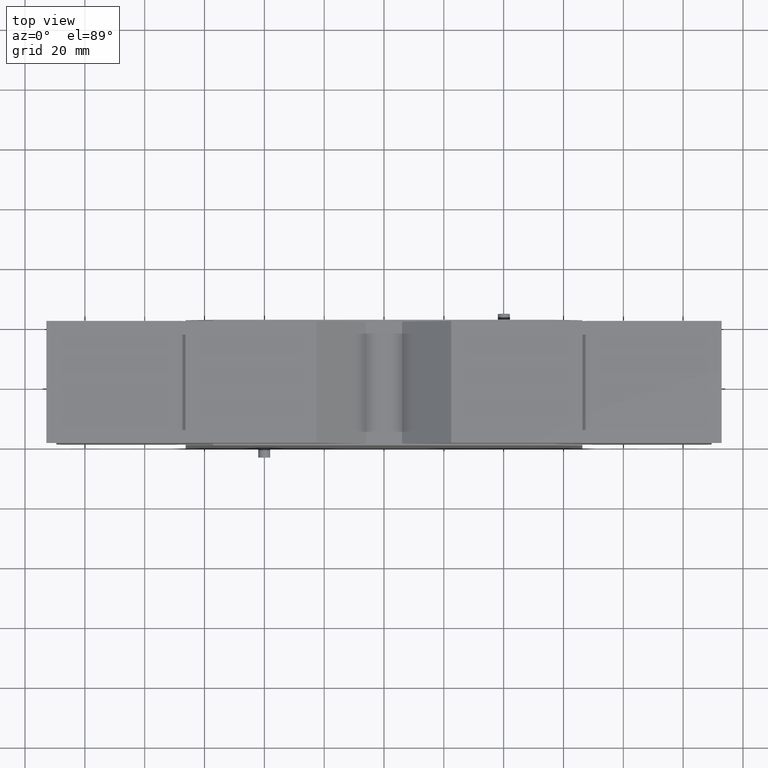
[diagram: clean part render]
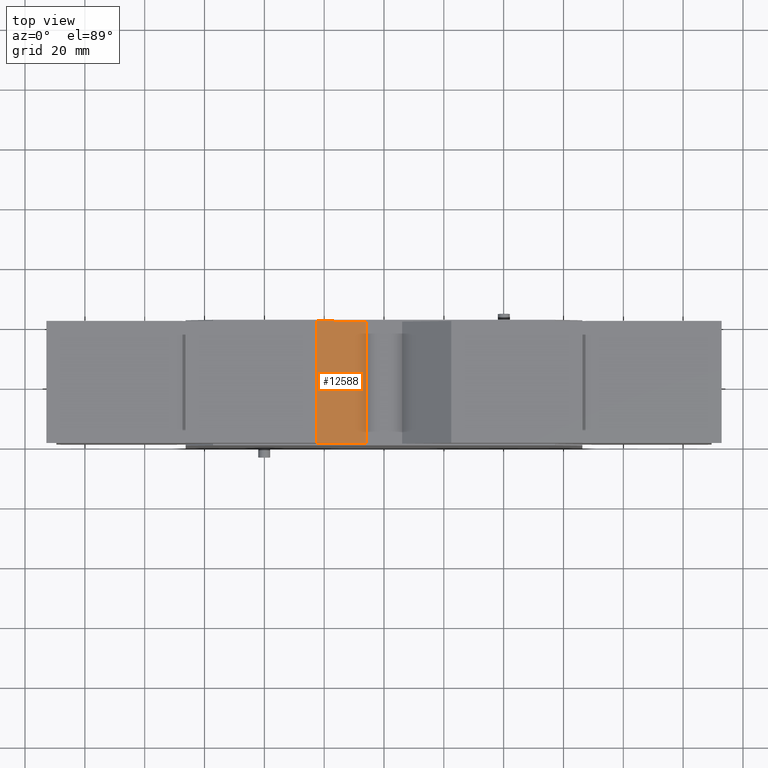
[diagram: same view with one face highlighted and labeled with its STEP entity id]
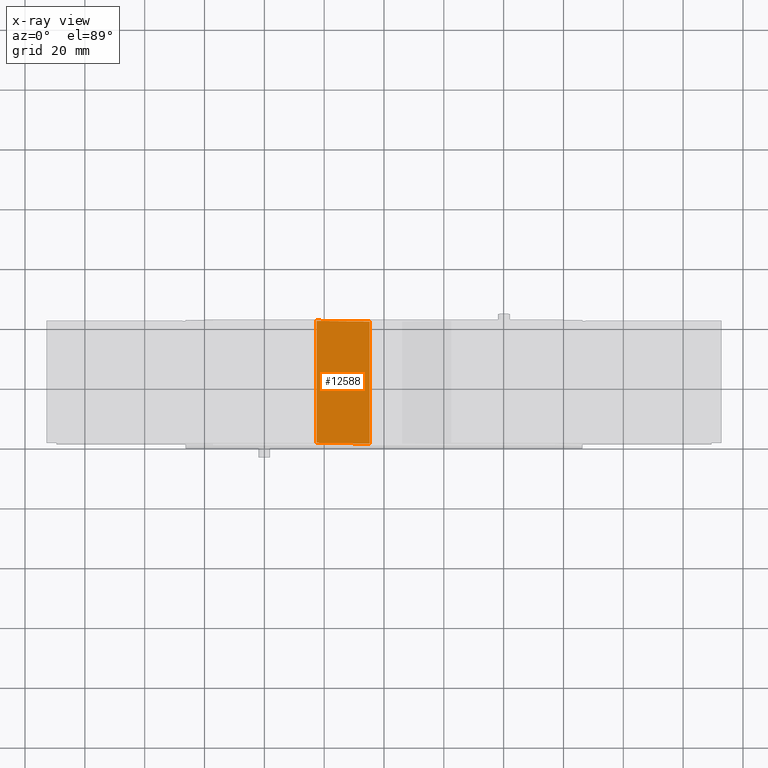
[diagram: x-ray of the same camera — body ghosted, the highlighted face saturated]
A machine part, top view. The second image highlights one B-rep face of the part: STEP entity #12588.
The next image is the same camera in x-ray: the body ghosted, the highlighted face saturated — about 0% of this face is hidden behind the body in this view.
In plain terms, the highlighted planar face has unit normal (0.6428, 0, 0.766).
Its self-contained STEP definition (entity closure, byte-faithful):
#488=LINE('',#19569,#1780);
#489=LINE('',#19571,#1781);
#490=LINE('',#19573,#1782);
#491=LINE('',#19575,#1783);
#1780=VECTOR('',#15930,1000.);
#1781=VECTOR('',#15933,1000.);
#1782=VECTOR('',#15934,1000.);
#1783=VECTOR('',#15935,1000.);
#3482=ORIENTED_EDGE('',*,*,#7070,.F.);
#3483=ORIENTED_EDGE('',*,*,#7069,.F.);
#3484=ORIENTED_EDGE('',*,*,#7071,.T.);
#3485=ORIENTED_EDGE('',*,*,#7072,.T.);
#7069=EDGE_CURVE('',#8905,#8904,#488,.T.);
#7070=EDGE_CURVE('',#8904,#8906,#489,.T.);
#7071=EDGE_CURVE('',#8905,#8907,#490,.T.);
#7072=EDGE_CURVE('',#8907,#8906,#491,.T.);
#8904=VERTEX_POINT('',#19566);
#8905=VERTEX_POINT('',#19568);
#8906=VERTEX_POINT('',#19572);
#8907=VERTEX_POINT('',#19574);
#10517=EDGE_LOOP('',(#3482,#3483,#3484,#3485));
#11309=FACE_BOUND('',#10517,.T.);
#12033=PLANE('',#14469);
#12588=ADVANCED_FACE('',(#11309),#12033,.T.);
#14469=AXIS2_PLACEMENT_3D('',#19570,#15931,#15932);
#15930=DIRECTION('',(0.,-1.,0.));
#15931=DIRECTION('',(-0.642787609686539,0.,0.766044443118978));
#15932=DIRECTION('',(0.766044443118978,0.,0.642787609686539));
#15933=DIRECTION('',(-0.766044443118978,0.,-0.642787609686539));
#15934=DIRECTION('',(-0.766044443118978,0.,-0.642787609686539));
#15935=DIRECTION('',(0.,-1.,0.));
#19566=CARTESIAN_POINT('',(22.5012418851939,0.6,50.6099999999993));
#19568=CARTESIAN_POINT('',(22.5012418851939,41.4,50.6099999999993));
#19569=CARTESIAN_POINT('',(22.5012418851939,41.4,50.6099999999993));
#19570=CARTESIAN_POINT('',(4.75124188519389,41.4,35.7159815466026));
#19571=CARTESIAN_POINT('',(4.75124188519389,0.6,35.7159815466026));
#19572=CARTESIAN_POINT('',(4.75124188519389,0.6,35.7159815466026));
#19573=CARTESIAN_POINT('',(4.75124188519389,41.4,35.7159815466026));
#19574=CARTESIAN_POINT('',(4.75124188519389,41.4,35.7159815466026));
#19575=CARTESIAN_POINT('',(4.75124188519389,41.4,35.7159815466026));